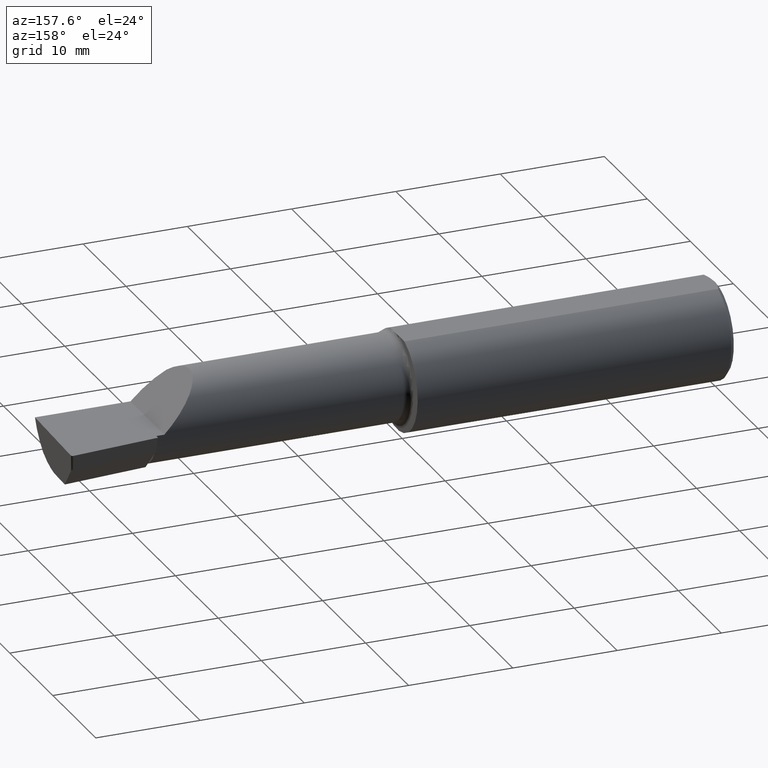
[diagram: clean part render]
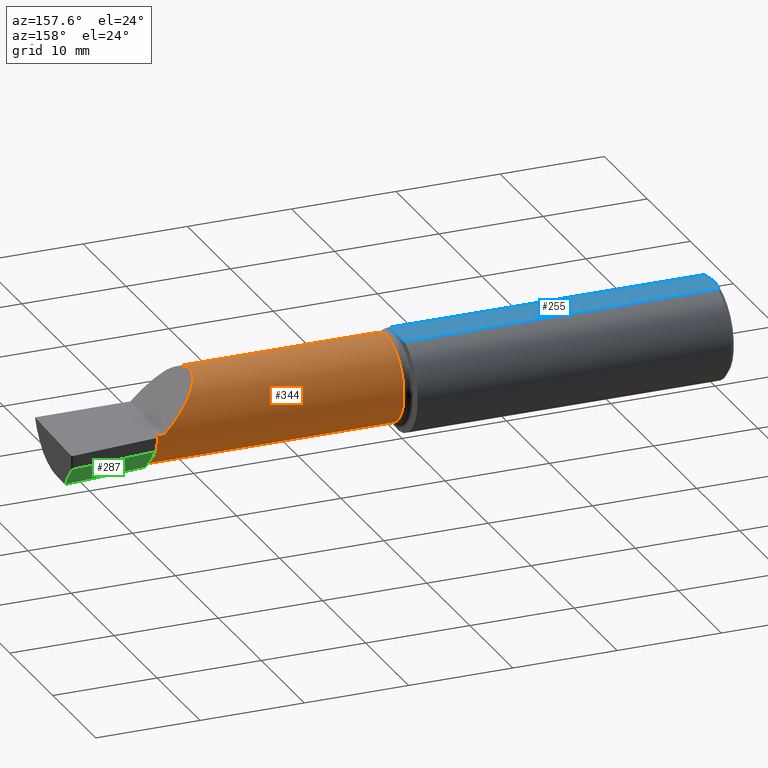
[diagram: same view with three faces highlighted in distinct colors, each labeled with its STEP entity id]
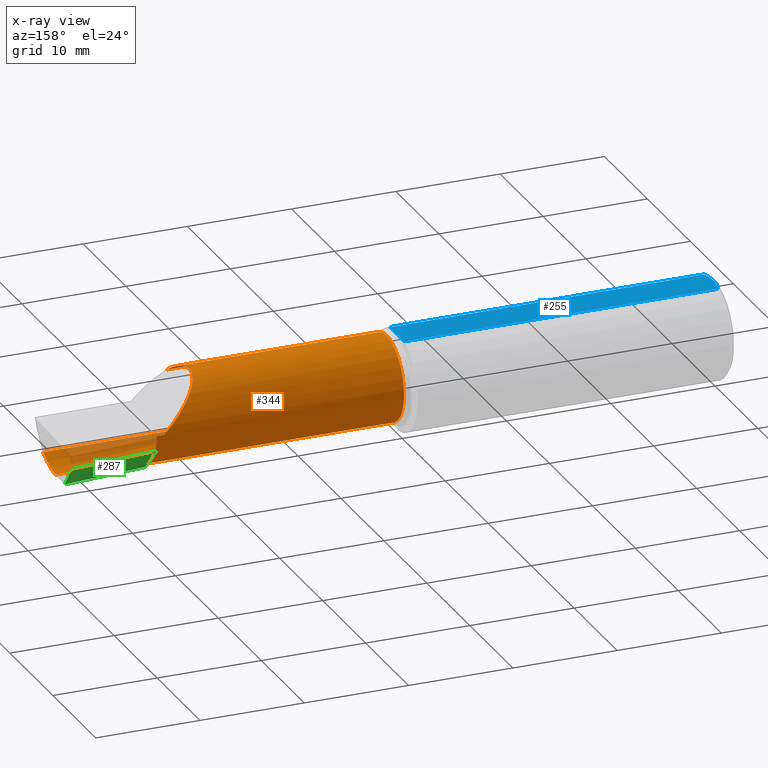
[diagram: x-ray of the same camera — body ghosted, the three highlighted faces saturated]
A machine part, auxiliary view with three faces highlighted in distinct colors.
The next image is the same camera in x-ray (body ghosted, the three faces saturated) — at least one of them is partly hidden behind the body in this view.
Their STEP definitions:

[orange] entity #344 — the highlighted cylindrical surface (partial cylindrical patch) has radius 4.0653 mm, axis along (-1, 0, -0).
#1 = EDGE_CURVE ( 'NONE', #541, #280, #533, .T. ) ;
#3 = DIRECTION ( 'NONE',  ( 0.000000000000000000, -1.000000000000000000, 0.000000000000000000 ) ) ;
#11 = CARTESIAN_POINT ( 'NONE',  ( 2.160000000000000142, 0.1226499999999998980, 3.267291166268306182E-16 ) ) ;
#21 = CARTESIAN_POINT ( 'NONE',  ( 1.967758842172328881, 0.1226499999999998702, 0.1622411578276697630 ) ) ;
#29 = VERTEX_POINT ( 'NONE', #579 ) ;
#52 = LINE ( 'NONE', #584, #609 ) ;
#68 = CARTESIAN_POINT ( 'NONE',  ( 2.159999999999999698, 0.04400172171466225357, -0.1378033461200730003 ) ) ;
#71 = EDGE_CURVE ( 'NONE', #29, #134, #333, .T. ) ;
#85 = CARTESIAN_POINT ( 'NONE',  ( 1.225000000000000089, -0.1454917112299475290, 0.1180346748349042629 ) ) ;
#113 = DIRECTION ( 'NONE',  ( 1.000000000000000000, -6.829619984160658046E-18, 0.000000000000000000 ) ) ;
#115 = CARTESIAN_POINT ( 'NONE',  ( 0.000000000000000000, -0.03739999999999998881, 0.000000000000000000 ) ) ;
#134 = VERTEX_POINT ( 'NONE', #11 ) ;
#135 = CIRCLE ( 'NONE', #264, 0.1600499999999998868 ) ;
#145 = EDGE_CURVE ( 'NONE', #134, #380, #652, .T. ) ;
#148 = VERTEX_POINT ( 'NONE', #670 ) ;
#168 = FACE_OUTER_BOUND ( 'NONE', #305, .T. ) ;
#173 = CARTESIAN_POINT ( 'NONE',  ( 2.473833329693931660, -0.07789060880782676388, -0.1600499999999998868 ) ) ;
#182 = DIRECTION ( 'NONE',  ( 0.000000000000000000, -1.000000000000000000, 0.000000000000000000 ) ) ;
#183 = VERTEX_POINT ( 'NONE', #662 ) ;
#186 = CARTESIAN_POINT ( 'NONE',  ( 1.902393788885675230, -0.02584108761840225171, 0.2276062111143220545 ) ) ;
#189 = ORIENTED_EDGE ( 'NONE', *, *, #71, .T. ) ;
#200 = ORIENTED_EDGE ( 'NONE', *, *, #206, .T. ) ;
#201 = AXIS2_PLACEMENT_3D ( 'NONE', #466, #412, #250 ) ;
#206 = EDGE_CURVE ( 'NONE', #496, #646, #312, .T. ) ;
#207 = DIRECTION ( 'NONE',  ( 1.000000000000000000, -6.829619984160658046E-18, 0.000000000000000000 ) ) ;
#212 = EDGE_CURVE ( 'NONE', #496, #380, #135, .T. ) ;
#213 = VECTOR ( 'NONE', #393, 39.37007874015748143 ) ;
#214 = CARTESIAN_POINT ( 'NONE',  ( 1.692500000000000115, -0.1454917112299469462, 0.1180346748349048319 ) ) ;
#228 = EDGE_CURVE ( 'NONE', #544, #148, #234, .T. ) ;
#234 =( BOUNDED_CURVE ( )  B_SPLINE_CURVE ( 3, ( #384, #324, #173, #375 ),
 .UNSPECIFIED., .F., .F. ) 
 B_SPLINE_CURVE_WITH_KNOTS ( ( 4, 4 ),
 ( 5.751779107031150140, 6.493234751459354470 ),
 .UNSPECIFIED. ) 
 CURVE ( )  GEOMETRIC_REPRESENTATION_ITEM ( )  RATIONAL_B_SPLINE_CURVE ( ( 1.000000000000000000, 0.9547092712975349116, 0.9547092712975349116, 1.000000000000000000 ) ) 
 REPRESENTATION_ITEM ( '' )  );
#240 = CARTESIAN_POINT ( 'NONE',  ( 2.011965325165093077, -0.1454917112299461968, 0.1180346748349056646 ) ) ;
#244 = VECTOR ( 'NONE', #473, 39.37007874015748143 ) ;
#250 = DIRECTION ( 'NONE',  ( 0.000000000000000000, -1.000000000000000000, 0.000000000000000000 ) ) ;
#264 = AXIS2_PLACEMENT_3D ( 'NONE', #611, #113, #440 ) ;
#265 = CARTESIAN_POINT ( 'NONE',  ( 2.011965325165093077, -0.1454917112299461968, 0.1180346748349056646 ) ) ;
#273 = DIRECTION ( 'NONE',  ( -1.000000000000000000, 6.829619984160658046E-18, -0.000000000000000000 ) ) ;
#274 = CARTESIAN_POINT ( 'NONE',  ( 2.160000000000000142, -0.03740000000000000269, 0.000000000000000000 ) ) ;
#280 = VERTEX_POINT ( 'NONE', #265 ) ;
#282 = AXIS2_PLACEMENT_3D ( 'NONE', #274, #448, #3 ) ;
#286 = ORIENTED_EDGE ( 'NONE', *, *, #228, .F. ) ;
#300 = EDGE_CURVE ( 'NONE', #148, #646, #52, .T. ) ;
#305 = EDGE_LOOP ( 'NONE', ( #286, #366, #675, #608, #576, #189, #514, #582, #200, #667 ) ) ;
#309 = CARTESIAN_POINT ( 'NONE',  ( 2.477223734188805704, -0.1454917112299469462, -0.1180346748349048319 ) ) ;
#312 = CIRCLE ( 'NONE', #436, 0.1600499999999999146 ) ;
#324 = CARTESIAN_POINT ( 'NONE',  ( 2.474646882977777018, -0.1156304438478841790, -0.1453804992321578726 ) ) ;
#333 = LINE ( 'NONE', #341, #213 ) ;
#341 = CARTESIAN_POINT ( 'NONE',  ( 1.093080678464946168E-18, 0.1226499999999998564, 3.267291166268304703E-16 ) ) ;
#344 = ADVANCED_FACE ( 'NONE', ( #168 ), #595, .T. ) ;
#366 = ORIENTED_EDGE ( 'NONE', *, *, #683, .T. ) ;
#375 = CARTESIAN_POINT ( 'NONE',  ( 2.474893613600459119, -0.03739999999999999575, -0.1600499999999999701 ) ) ;
#380 = VERTEX_POINT ( 'NONE', #397 ) ;
#384 = CARTESIAN_POINT ( 'NONE',  ( 2.477223734188805704, -0.1454917112299469462, -0.1180346748349048319 ) ) ;
#393 = DIRECTION ( 'NONE',  ( 1.000000000000000000, -6.829619984160658046E-18, 0.000000000000000000 ) ) ;
#397 = CARTESIAN_POINT ( 'NONE',  ( 2.159999999999999698, 0.1028057716897399221, -0.07719031082256687382 ) ) ;
#412 = DIRECTION ( 'NONE',  ( -1.000000000000000000, 6.829619984160658046E-18, -0.000000000000000000 ) ) ;
#422 = VECTOR ( 'NONE', #207, 39.37007874015748143 ) ;
#435 = AXIS2_PLACEMENT_3D ( 'NONE', #115, #273, #487 ) ;
#436 = AXIS2_PLACEMENT_3D ( 'NONE', #666, #537, #182 ) ;
#440 = DIRECTION ( 'NONE',  ( 0.000000000000000000, -1.000000000000000000, -1.776356839400250465E-15 ) ) ;
#448 = DIRECTION ( 'NONE',  ( -1.000000000000000000, 6.829619984160658046E-18, -0.000000000000000000 ) ) ;
#453 = EDGE_CURVE ( 'NONE', #280, #29, #691, .T. ) ;
#454 = CARTESIAN_POINT ( 'NONE',  ( 2.129999999999999893, 0.1226499999999998147, 1.065442715258197396E-16 ) ) ;
#466 = CARTESIAN_POINT ( 'NONE',  ( 1.225000000000000089, -0.03739999999999999575, 0.000000000000000000 ) ) ;
#473 = DIRECTION ( 'NONE',  ( -1.000000000000000000, 6.829619984160658046E-18, -0.000000000000000000 ) ) ;
#487 = DIRECTION ( 'NONE',  ( -6.829619984160657276E-18, -1.000000000000000000, 0.000000000000000000 ) ) ;
#496 = VERTEX_POINT ( 'NONE', #68 ) ;
#514 = ORIENTED_EDGE ( 'NONE', *, *, #145, .T. ) ;
#521 = CIRCLE ( 'NONE', #201, 0.1600499999999998313 ) ;
#533 = LINE ( 'NONE', #214, #422 ) ;
#537 = DIRECTION ( 'NONE',  ( -1.000000000000000000, 6.829619984160658046E-18, -0.000000000000000000 ) ) ;
#541 = VERTEX_POINT ( 'NONE', #85 ) ;
#544 = VERTEX_POINT ( 'NONE', #309 ) ;
#576 = ORIENTED_EDGE ( 'NONE', *, *, #453, .T. ) ;
#579 = CARTESIAN_POINT ( 'NONE',  ( 2.129999999999999893, 0.1226499999999998147, 1.065442715258197396E-16 ) ) ;
#580 = EDGE_CURVE ( 'NONE', #541, #183, #521, .T. ) ;
#582 = ORIENTED_EDGE ( 'NONE', *, *, #212, .F. ) ;
#584 = CARTESIAN_POINT ( 'NONE',  ( 2.500000000000000000, -0.03739999999999999575, -0.1600499999999999701 ) ) ;
#595 = CYLINDRICAL_SURFACE ( 'NONE', #435, 0.1600499999999998868 ) ;
#608 = ORIENTED_EDGE ( 'NONE', *, *, #1, .T. ) ;
#609 = VECTOR ( 'NONE', #645, 39.37007874015748143 ) ;
#611 = CARTESIAN_POINT ( 'NONE',  ( 2.159999999999999698, -0.03740000000000000269, 0.000000000000000000 ) ) ;
#624 = CARTESIAN_POINT ( 'NONE',  ( 2.159999999999999698, -0.03739999999999999575, -0.1600499999999999701 ) ) ;
#639 = CARTESIAN_POINT ( 'NONE',  ( 1.692500000000000115, -0.1454917112299469462, -0.1180346748349048319 ) ) ;
#645 = DIRECTION ( 'NONE',  ( -1.000000000000000000, 5.691349986800549142E-18, -0.000000000000000000 ) ) ;
#646 = VERTEX_POINT ( 'NONE', #624 ) ;
#647 = LINE ( 'NONE', #639, #244 ) ;
#652 = CIRCLE ( 'NONE', #282, 0.1600499999999999146 ) ;
#662 = CARTESIAN_POINT ( 'NONE',  ( 1.225000000000000089, -0.1454917112299472237, -0.1180346748349045127 ) ) ;
#666 = CARTESIAN_POINT ( 'NONE',  ( 2.160000000000000142, -0.03740000000000000269, 0.000000000000000000 ) ) ;
#667 = ORIENTED_EDGE ( 'NONE', *, *, #300, .F. ) ;
#670 = CARTESIAN_POINT ( 'NONE',  ( 2.474893613600459119, -0.03739999999999999575, -0.1600499999999999701 ) ) ;
#675 = ORIENTED_EDGE ( 'NONE', *, *, #580, .F. ) ;
#683 = EDGE_CURVE ( 'NONE', #544, #183, #647, .T. ) ;
#691 =( BOUNDED_CURVE ( )  B_SPLINE_CURVE ( 3, ( #240, #186, #21, #454 ),
 .UNSPECIFIED., .F., .F. ) 
 B_SPLINE_CURVE_WITH_KNOTS ( ( 4, 4 ),
 ( 5.541729662751389007, 7.853981633974482790 ),
 .UNSPECIFIED. ) 
 CURVE ( )  GEOMETRIC_REPRESENTATION_ITEM ( )  RATIONAL_B_SPLINE_CURVE ( ( 1.000000000000000000, 0.6019254882129729811, 0.6019254882129729811, 1.000000000000000000 ) ) 
 REPRESENTATION_ITEM ( '' )  );

[blue] entity #255 — the highlighted planar face has unit normal (0, -0, -1).
#27 = CARTESIAN_POINT ( 'NONE',  ( 0.003000000000000169632, 0.01127363201155560934, 0.1753499999999999781 ) ) ;
#32 = LINE ( 'NONE', #461, #99 ) ;
#44 = ORIENTED_EDGE ( 'NONE', *, *, #110, .F. ) ;
#48 = EDGE_CURVE ( 'NONE', #73, #452, #396, .T. ) ;
#55 = DIRECTION ( 'NONE',  ( -6.829619984160658046E-18, -1.000000000000000000, 1.438723400918613551E-16 ) ) ;
#56 = CARTESIAN_POINT ( 'NONE',  ( 0.01499999999999997863, -0.06597272163553657975, 0.1753499999999999781 ) ) ;
#59 = CARTESIAN_POINT ( 'NONE',  ( 1.201116380138691264, -0.06597272163553657975, 0.1753499999999999781 ) ) ;
#69 = CARTESIAN_POINT ( 'NONE',  ( 1.201049074448707232, -0.007621984361076244475, 0.1753499999999999781 ) ) ;
#73 = VERTEX_POINT ( 'NONE', #56 ) ;
#74 = CARTESIAN_POINT ( 'NONE',  ( 0.004115035183746292881, 0.02255629470626744487, 0.1753499999999999781 ) ) ;
#77 = B_SPLINE_CURVE_WITH_KNOTS ( 'NONE', 3,
 ( #340, #27, #74, #504, #559, #238 ),
 .UNSPECIFIED., .F., .F.,
 ( 4, 2, 4 ),
 ( 0.003480013901590607410, 0.004330767971208083697, 0.005181522040825559984 ),
 .UNSPECIFIED. ) ;
#96 = CARTESIAN_POINT ( 'NONE',  ( 1.199999999999999956, 0.02172596722253220328, 0.1753499999999999781 ) ) ;
#99 = VECTOR ( 'NONE', #409, 39.37007874015748143 ) ;
#110 = EDGE_CURVE ( 'NONE', #553, #614, #175, .T. ) ;
#112 = CARTESIAN_POINT ( 'NONE',  ( 1.199999999999999956, 0.2373500000000000332, 0.1753499999999999504 ) ) ;
#116 = CARTESIAN_POINT ( 'NONE',  ( 1.201446793517542799, -0.01487494471388408138, 0.1753499999999999781 ) ) ;
#117 = ORIENTED_EDGE ( 'NONE', *, *, #248, .F. ) ;
#118 = FACE_OUTER_BOUND ( 'NONE', #430, .T. ) ;
#120 = VERTEX_POINT ( 'NONE', #285 ) ;
#128 = CARTESIAN_POINT ( 'NONE',  ( 0.004093196532652216939, -0.02240707710020816909, 0.1753499999999999504 ) ) ;
#136 = CARTESIAN_POINT ( 'NONE',  ( 0.003000000000000218638, 2.334609556160449697E-17, 0.1753499999999999781 ) ) ;
#161 = LINE ( 'NONE', #112, #303 ) ;
#174 = CARTESIAN_POINT ( 'NONE',  ( 1.201790586316525022, -0.05136925160306193144, 0.1753500000000000614 ) ) ;
#175 = B_SPLINE_CURVE_WITH_KNOTS ( 'NONE', 3,
 ( #596, #543, #328, #69, #116, #236, #602, #174, #540, #59 ),
 .UNSPECIFIED., .F., .F.,
 ( 4, 2, 2, 2, 4 ),
 ( 0.01227444304810800316, 0.01283060897602173595, 0.01338677490393546873, 0.01394294083184920152, 0.01449910675976293431 ),
 .UNSPECIFIED. ) ;
#178 = CARTESIAN_POINT ( 'NONE',  ( 0.01499999999999997863, -0.06597272163553657975, 0.1753499999999999781 ) ) ;
#223 = PLANE ( 'NONE',  #668 ) ;
#236 = CARTESIAN_POINT ( 'NONE',  ( 1.201936435452952034, -0.02946557294850779898, 0.1753499999999999781 ) ) ;
#238 = CARTESIAN_POINT ( 'NONE',  ( 0.01499999999999999424, 0.06597272163553663527, 0.1753499999999999781 ) ) ;
#248 = EDGE_CURVE ( 'NONE', #339, #553, #161, .T. ) ;
#255 = ADVANCED_FACE ( 'NONE', ( #118 ), #223, .F. ) ;
#256 = LINE ( 'NONE', #690, #469 ) ;
#269 = DIRECTION ( 'NONE',  ( 0.000000000000000000, -1.438723400918613551E-16, -1.000000000000000000 ) ) ;
#275 = ORIENTED_EDGE ( 'NONE', *, *, #48, .F. ) ;
#285 = CARTESIAN_POINT ( 'NONE',  ( 0.01499999999999999424, 0.06597272163553663527, 0.1753499999999999781 ) ) ;
#303 = VECTOR ( 'NONE', #55, 39.37007874015748143 ) ;
#328 = CARTESIAN_POINT ( 'NONE',  ( 1.200322286002908134, 0.007053356780979085430, 0.1753499999999999781 ) ) ;
#330 = ORIENTED_EDGE ( 'NONE', *, *, #612, .F. ) ;
#339 = VERTEX_POINT ( 'NONE', #433 ) ;
#340 = CARTESIAN_POINT ( 'NONE',  ( 0.003000000000000218638, 2.334609556160449697E-17, 0.1753499999999999781 ) ) ;
#361 = ORIENTED_EDGE ( 'NONE', *, *, #643, .F. ) ;
#372 = EDGE_CURVE ( 'NONE', #452, #120, #77, .T. ) ;
#383 = CARTESIAN_POINT ( 'NONE',  ( 0.01128414053810044941, -0.05542038647445821781, 0.1753499999999999781 ) ) ;
#385 = CARTESIAN_POINT ( 'NONE',  ( 0.003000000000000172667, -0.01126410975715121283, 0.1753500000000000059 ) ) ;
#391 = ORIENTED_EDGE ( 'NONE', *, *, #372, .F. ) ;
#396 = B_SPLINE_CURVE_WITH_KNOTS ( 'NONE', 3,
 ( #178, #383, #434, #128, #385, #438 ),
 .UNSPECIFIED., .F., .F.,
 ( 4, 2, 4 ),
 ( 0.001779942938356815062, 0.002629978419973711019, 0.003480013901590607410 ),
 .UNSPECIFIED. ) ;
#409 = DIRECTION ( 'NONE',  ( -1.000000000000000000, -0.000000000000000000, -0.000000000000000000 ) ) ;
#417 = DIRECTION ( 'NONE',  ( 1.000000000000000000, 0.000000000000000000, 0.000000000000000000 ) ) ;
#430 = EDGE_LOOP ( 'NONE', ( #44, #117, #330, #391, #275, #361 ) ) ;
#433 = CARTESIAN_POINT ( 'NONE',  ( 1.199999999999999956, 0.06597272163553663527, 0.1753499999999999781 ) ) ;
#434 = CARTESIAN_POINT ( 'NONE',  ( 0.008227791779583789808, -0.04447712204611815878, 0.1753499999999999781 ) ) ;
#438 = CARTESIAN_POINT ( 'NONE',  ( 0.003000000000000218638, 2.334609556160449697E-17, 0.1753499999999999781 ) ) ;
#452 = VERTEX_POINT ( 'NONE', #136 ) ;
#461 = CARTESIAN_POINT ( 'NONE',  ( 0.000000000000000000, -0.06597272163553657975, 0.1753499999999999781 ) ) ;
#469 = VECTOR ( 'NONE', #417, 39.37007874015748143 ) ;
#484 = DIRECTION ( 'NONE',  ( 0.000000000000000000, 1.000000000000000000, -1.438723400918613551E-16 ) ) ;
#504 = CARTESIAN_POINT ( 'NONE',  ( 0.008244775919947424855, 0.04453482769755855164, 0.1753499999999999504 ) ) ;
#540 = CARTESIAN_POINT ( 'NONE',  ( 1.201479449616799755, -0.05867400124853454357, 0.1753500000000000059 ) ) ;
#543 = CARTESIAN_POINT ( 'NONE',  ( 1.199999999999999956, 0.01439074984011788627, 0.1753500000000000614 ) ) ;
#553 = VERTEX_POINT ( 'NONE', #96 ) ;
#559 = CARTESIAN_POINT ( 'NONE',  ( 0.01125230581755086272, 0.05532998191409922023, 0.1753500000000000059 ) ) ;
#581 = CARTESIAN_POINT ( 'NONE',  ( 1.201116380138691264, -0.06597272163553657975, 0.1753499999999999781 ) ) ;
#588 = CARTESIAN_POINT ( 'NONE',  ( 2.500000000000000000, 0.2373500000000000332, 0.1753499999999999504 ) ) ;
#596 = CARTESIAN_POINT ( 'NONE',  ( 1.199999999999999956, 0.02172596722253220328, 0.1753499999999999781 ) ) ;
#602 = CARTESIAN_POINT ( 'NONE',  ( 1.202020598872754586, -0.03676412395315003384, 0.1753500000000000059 ) ) ;
#612 = EDGE_CURVE ( 'NONE', #120, #339, #256, .T. ) ;
#614 = VERTEX_POINT ( 'NONE', #581 ) ;
#643 = EDGE_CURVE ( 'NONE', #614, #73, #32, .T. ) ;
#668 = AXIS2_PLACEMENT_3D ( 'NONE', #588, #269, #484 ) ;
#690 = CARTESIAN_POINT ( 'NONE',  ( 0.000000000000000000, 0.06597272163553663527, 0.1753499999999999781 ) ) ;

[green] entity #287 — the highlighted planar face has unit normal (-0.0689, 0.716, -0.6947).
#2 = CARTESIAN_POINT ( 'NONE',  ( 2.159999999999999698, 0.1010446066476776567, -0.07900565447499380278 ) ) ;
#5 = VECTOR ( 'NONE', #216, 39.37007874015748143 ) ;
#7 = FACE_OUTER_BOUND ( 'NONE', #291, .T. ) ;
#25 = ORIENTED_EDGE ( 'NONE', *, *, #516, .T. ) ;
#31 = VECTOR ( 'NONE', #477, 39.37007874015748143 ) ;
#41 = DIRECTION ( 'NONE',  ( -0.9953961983671800740, -0.09584575252021028391, 0.000000000000000000 ) ) ;
#45 = LINE ( 'NONE', #192, #651 ) ;
#51 = CARTESIAN_POINT ( 'NONE',  ( 2.492483720199151431, 0.1538199878950227972, -0.05760614975163411838 ) ) ;
#53 = ORIENTED_EDGE ( 'NONE', *, *, #359, .T. ) ;
#64 = VECTOR ( 'NONE', #41, 39.37007874015748854 ) ;
#68 = CARTESIAN_POINT ( 'NONE',  ( 2.159999999999999698, 0.04400172171466225357, -0.1378033461200730003 ) ) ;
#87 = VERTEX_POINT ( 'NONE', #650 ) ;
#98 = CARTESIAN_POINT ( 'NONE',  ( 2.485034660857425415, 0.1507803188501191660, -0.05999999999999999084 ) ) ;
#104 = CARTESIAN_POINT ( 'NONE',  ( 2.485635073714544951, 0.1507954141789410452, -0.06004403198038569395 ) ) ;
#105 = LINE ( 'NONE', #648, #5 ) ;
#107 = LINE ( 'NONE', #51, #157 ) ;
#157 = VECTOR ( 'NONE', #483, 39.37007874015748854 ) ;
#158 = CARTESIAN_POINT ( 'NONE',  ( 2.511712141217646632, 0.1533490680423130470, -0.05999999999999999084 ) ) ;
#163 =( BOUNDED_CURVE ( )  B_SPLINE_CURVE ( 3, ( #618, #555, #672, #610 ),
 .UNSPECIFIED., .F., .F. ) 
 B_SPLINE_CURVE_WITH_KNOTS ( ( 4, 4 ),
 ( 3.064097098354606974, 3.156599629463129109 ),
 .UNSPECIFIED. ) 
 CURVE ( )  GEOMETRIC_REPRESENTATION_ITEM ( )  RATIONAL_B_SPLINE_CURVE ( ( 1.000000000000000000, 0.9992870672494019724, 0.9992870672494019724, 1.000000000000000000 ) ) 
 REPRESENTATION_ITEM ( '' )  );
#192 = CARTESIAN_POINT ( 'NONE',  ( 2.159999999999999698, 0.1010446066476776567, -0.07900565447499380278 ) ) ;
#196 = ORIENTED_EDGE ( 'NONE', *, *, #395, .T. ) ;
#216 = DIRECTION ( 'NONE',  ( -4.755568962650852027E-18, -0.6963153109074923242, -0.7177360153954950306 ) ) ;
#218 = LINE ( 'NONE', #2, #31 ) ;
#221 = CARTESIAN_POINT ( 'NONE',  ( 2.490474961019615296, 0.1405126185684960616, -0.07112352112763070666 ) ) ;
#227 = CARTESIAN_POINT ( 'NONE',  ( 2.159999999999999698, 0.02241901528670511845, -0.1600499999999999701 ) ) ;
#245 = AXIS2_PLACEMENT_3D ( 'NONE', #158, #370, #527 ) ;
#249 = VERTEX_POINT ( 'NONE', #227 ) ;
#270 = EDGE_CURVE ( 'NONE', #597, #380, #105, .T. ) ;
#279 =( BOUNDED_CURVE ( )  B_SPLINE_CURVE ( 3, ( #443, #296, #284, #506 ),
 .UNSPECIFIED., .F., .F. ) 
 B_SPLINE_CURVE_WITH_KNOTS ( ( 4, 4 ),
 ( 3.156599629463129109, 4.715023529952401482 ),
 .UNSPECIFIED. ) 
 CURVE ( )  GEOMETRIC_REPRESENTATION_ITEM ( )  RATIONAL_B_SPLINE_CURVE ( ( 1.000000000000000000, 0.8076450242550375913, 0.8076450242550375913, 1.000000000000000000 ) ) 
 REPRESENTATION_ITEM ( '' )  );
#284 = CARTESIAN_POINT ( 'NONE',  ( 2.491359894127285646, 0.1463750095474666002, -0.06516861643763510736 ) ) ;
#287 = ADVANCED_FACE ( 'NONE', ( #7 ), #592, .T. ) ;
#288 = EDGE_CURVE ( 'NONE', #380, #496, #218, .T. ) ;
#291 = EDGE_LOOP ( 'NONE', ( #346, #196, #53, #416, #25, #371, #348, #619 ) ) ;
#296 = CARTESIAN_POINT ( 'NONE',  ( 2.489362363380600129, 0.1506189514202919688, -0.06059586115756859792 ) ) ;
#346 = ORIENTED_EDGE ( 'NONE', *, *, #679, .F. ) ;
#348 = ORIENTED_EDGE ( 'NONE', *, *, #288, .F. ) ;
#359 = EDGE_CURVE ( 'NONE', #685, #680, #279, .T. ) ;
#370 = DIRECTION ( 'NONE',  ( -0.06894566448119622548, 0.7160281025913036723, -0.6946583704589932573 ) ) ;
#371 = ORIENTED_EDGE ( 'NONE', *, *, #623, .F. ) ;
#380 = VERTEX_POINT ( 'NONE', #397 ) ;
#395 = EDGE_CURVE ( 'NONE', #507, #685, #163, .T. ) ;
#397 = CARTESIAN_POINT ( 'NONE',  ( 2.159999999999999698, 0.1028057716897399221, -0.07719031082256687382 ) ) ;
#416 = ORIENTED_EDGE ( 'NONE', *, *, #664, .F. ) ;
#432 = DIRECTION ( 'NONE',  ( -0.9953961983671800740, -0.09584575252021031166, 0.000000000000000000 ) ) ;
#443 = CARTESIAN_POINT ( 'NONE',  ( 2.485635073714544951, 0.1507954141789410452, -0.06004403198038569395 ) ) ;
#463 = CARTESIAN_POINT ( 'NONE',  ( 2.159999999999999698, 0.1194830407249524024, -0.05999999999999999778 ) ) ;
#477 = DIRECTION ( 'NONE',  ( -4.755568962650852027E-18, -0.6963153109074923242, -0.7177360153954950306 ) ) ;
#483 = DIRECTION ( 'NONE',  ( 0.1053106618240541026, 0.6976485211320200275, 0.7086580314005372916 ) ) ;
#496 = VERTEX_POINT ( 'NONE', #68 ) ;
#506 = CARTESIAN_POINT ( 'NONE',  ( 2.490474961019615296, 0.1405126185684960616, -0.07112352112763070666 ) ) ;
#507 = VERTEX_POINT ( 'NONE', #98 ) ;
#516 = EDGE_CURVE ( 'NONE', #87, #249, #635, .T. ) ;
#527 = DIRECTION ( 'NONE',  ( 0.000000000000000000, 0.6963153109074923242, 0.7177360153954949196 ) ) ;
#538 = LINE ( 'NONE', #590, #545 ) ;
#545 = VECTOR ( 'NONE', #432, 39.37007874015748854 ) ;
#555 = CARTESIAN_POINT ( 'NONE',  ( 2.485236590184755290, 0.1507997624328510367, -0.05999999999999987288 ) ) ;
#571 = DIRECTION ( 'NONE',  ( -4.755568962650852027E-18, -0.6963153109074923242, -0.7177360153954950306 ) ) ;
#590 = CARTESIAN_POINT ( 'NONE',  ( 2.511712141217646632, 0.1533490680423130470, -0.05999999999999999084 ) ) ;
#592 = PLANE ( 'NONE',  #245 ) ;
#597 = VERTEX_POINT ( 'NONE', #463 ) ;
#610 = CARTESIAN_POINT ( 'NONE',  ( 2.485635073714544951, 0.1507954141789410452, -0.06004403198038569395 ) ) ;
#618 = CARTESIAN_POINT ( 'NONE',  ( 2.485034660857425415, 0.1507803188501191660, -0.05999999999999999084 ) ) ;
#619 = ORIENTED_EDGE ( 'NONE', *, *, #270, .F. ) ;
#623 = EDGE_CURVE ( 'NONE', #496, #249, #45, .T. ) ;
#635 = LINE ( 'NONE', #684, #64 ) ;
#648 = CARTESIAN_POINT ( 'NONE',  ( 2.159999999999999698, 0.1010446066476776567, -0.07900565447499380278 ) ) ;
#650 = CARTESIAN_POINT ( 'NONE',  ( 2.477259974483410065, 0.05296767626088361158, -0.1600499999999999701 ) ) ;
#651 = VECTOR ( 'NONE', #571, 39.37007874015748143 ) ;
#664 = EDGE_CURVE ( 'NONE', #87, #680, #107, .T. ) ;
#672 = CARTESIAN_POINT ( 'NONE',  ( 2.485436870590255864, 0.1508047977990024102, -0.06001468779820750415 ) ) ;
#679 = EDGE_CURVE ( 'NONE', #507, #597, #538, .T. ) ;
#680 = VERTEX_POINT ( 'NONE', #221 ) ;
#684 = CARTESIAN_POINT ( 'NONE',  ( 2.491169618080469217, 0.05430702260361125466, -0.1600499999999999701 ) ) ;
#685 = VERTEX_POINT ( 'NONE', #104 ) ;